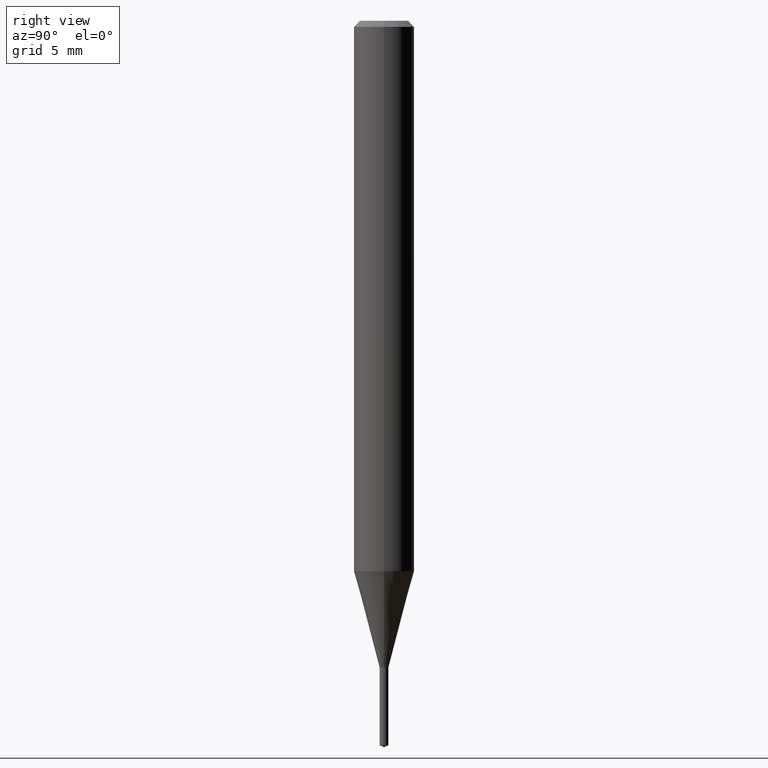
[diagram: clean part render]
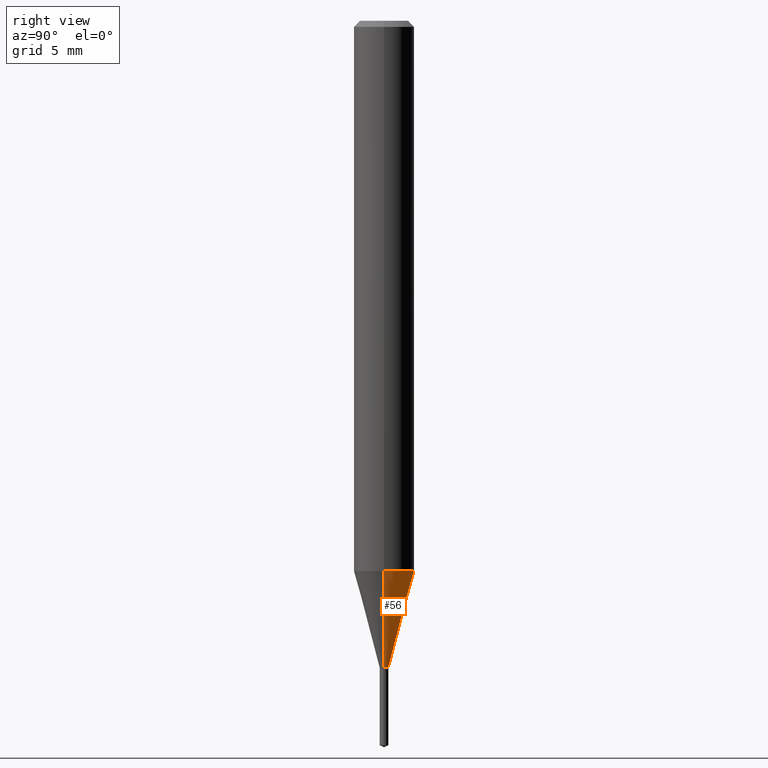
[diagram: same view with one face highlighted and labeled with its STEP entity id]
A machine part, right view. The second image highlights one B-rep face of the part: STEP entity #56.
In plain terms, the highlighted conical surface has half-angle 15 deg.
Its self-contained STEP definition (entity closure, byte-faithful):
#5 = AXIS2_PLACEMENT_3D ( 'NONE', #149, #284, #111 ) ;
#27 = DIRECTION ( 'NONE',  ( -2.445468806185136597E-29, 3.491481338843145583E-15, 1.000000000000000000 ) ) ;
#31 = ORIENTED_EDGE ( 'NONE', *, *, #171, .T. ) ;
#32 = AXIS2_PLACEMENT_3D ( 'NONE', #371, #27, #482 ) ;
#39 = VERTEX_POINT ( 'NONE', #179 ) ;
#52 = EDGE_CURVE ( 'NONE', #208, #39, #451, .T. ) ;
#53 = CARTESIAN_POINT ( 'NONE',  ( 0.008999999999999999320, -4.726767436525850023E-15, -1.335800000000000098 ) ) ;
#56 = ADVANCED_FACE ( 'NONE', ( #78 ), #326, .T. ) ;
#58 = CARTESIAN_POINT ( 'NONE',  ( -0.008999999999999999320, -4.370756176313212753E-15, -1.335800000000000098 ) ) ;
#63 = DIRECTION ( 'NONE',  ( -0.2588190451025280114, 5.211531920934590485E-15, 0.9659258262890662028 ) ) ;
#78 = FACE_OUTER_BOUND ( 'NONE', #116, .T. ) ;
#111 = DIRECTION ( 'NONE',  ( 1.000000000000000000, -6.982962677686225690E-15, 0.000000000000000000 ) ) ;
#116 = EDGE_LOOP ( 'NONE', ( #31, #420, #297, #331 ) ) ;
#124 = DIRECTION ( 'NONE',  ( -2.445468806185136597E-29, 3.491481338843145583E-15, 1.000000000000000000 ) ) ;
#135 = VECTOR ( 'NONE', #63, 39.37007874015748854 ) ;
#137 = DIRECTION ( 'NONE',  ( 0.2588190451025280114, 1.565188264969568522E-15, 0.9659258262890662028 ) ) ;
#149 = CARTESIAN_POINT ( 'NONE',  ( 3.266657231302105794E-29, -4.663920772426673528E-15, -1.335800000000000098 ) ) ;
#155 = CARTESIAN_POINT ( 'NONE',  ( 3.266657231302105794E-29, -4.663920772426673528E-15, -1.335800000000000098 ) ) ;
#171 = EDGE_CURVE ( 'NONE', #299, #229, #435, .T. ) ;
#179 = CARTESIAN_POINT ( 'NONE',  ( -0.06250000000000013878, -3.522705924938723995E-15, -1.136135281795070506 ) ) ;
#208 = VERTEX_POINT ( 'NONE', #309 ) ;
#224 = LINE ( 'NONE', #53, #283 ) ;
#229 = VERTEX_POINT ( 'NONE', #58 ) ;
#234 = CARTESIAN_POINT ( 'NONE',  ( -0.008999999999999999320, -4.599971926208265243E-15, -1.335800000000000098 ) ) ;
#253 = EDGE_CURVE ( 'NONE', #299, #208, #224, .T. ) ;
#283 = VECTOR ( 'NONE', #137, 39.37007874015748854 ) ;
#284 = DIRECTION ( 'NONE',  ( -2.445468806185136597E-29, 3.491481338843145583E-15, 1.000000000000000000 ) ) ;
#287 = EDGE_CURVE ( 'NONE', #229, #39, #408, .T. ) ;
#288 = AXIS2_PLACEMENT_3D ( 'NONE', #155, #124, #430 ) ;
#297 = ORIENTED_EDGE ( 'NONE', *, *, #52, .F. ) ;
#299 = VERTEX_POINT ( 'NONE', #339 ) ;
#309 = CARTESIAN_POINT ( 'NONE',  ( 0.06250000000000013878, -4.403230302144179464E-15, -1.136135281795070506 ) ) ;
#326 = CONICAL_SURFACE ( 'NONE', #288, 0.008999999999999999320, 0.2617993877991570129 ) ;
#331 = ORIENTED_EDGE ( 'NONE', *, *, #253, .F. ) ;
#339 = CARTESIAN_POINT ( 'NONE',  ( 0.008999999999999999320, -4.726767436525850023E-15, -1.335800000000000098 ) ) ;
#371 = CARTESIAN_POINT ( 'NONE',  ( 2.778383391236205405E-29, -3.966795134788787794E-15, -1.136135281795070506 ) ) ;
#408 = LINE ( 'NONE', #234, #135 ) ;
#420 = ORIENTED_EDGE ( 'NONE', *, *, #287, .T. ) ;
#430 = DIRECTION ( 'NONE',  ( 1.000000000000000000, -6.982962677686225690E-15, 0.000000000000000000 ) ) ;
#435 = CIRCLE ( 'NONE', #5, 0.008999999999999999320 ) ;
#451 = CIRCLE ( 'NONE', #32, 0.06250000000000013878 ) ;
#482 = DIRECTION ( 'NONE',  ( 1.000000000000000000, -6.982962677686270655E-15, 0.000000000000000000 ) ) ;